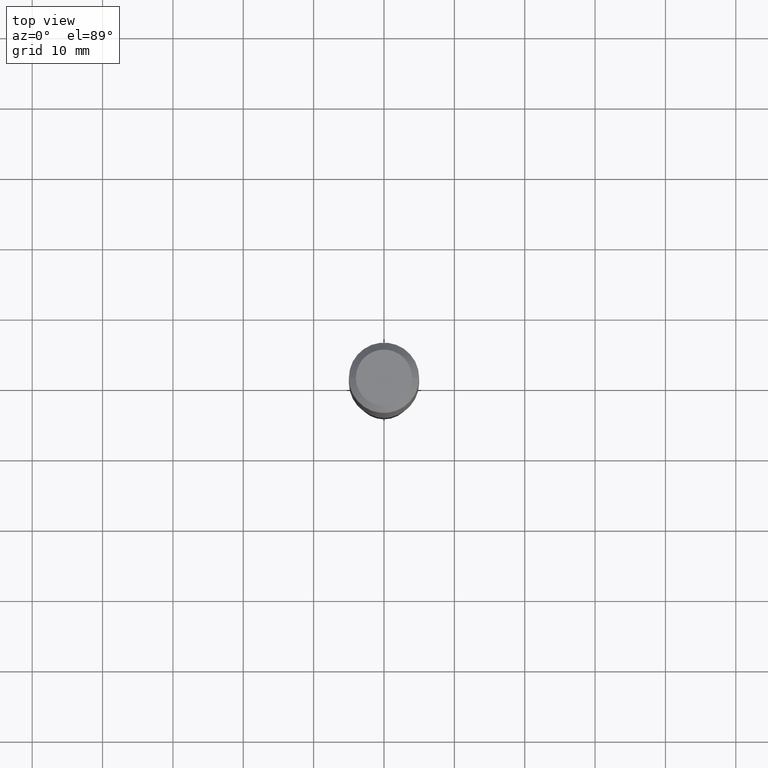
[diagram: clean part render]
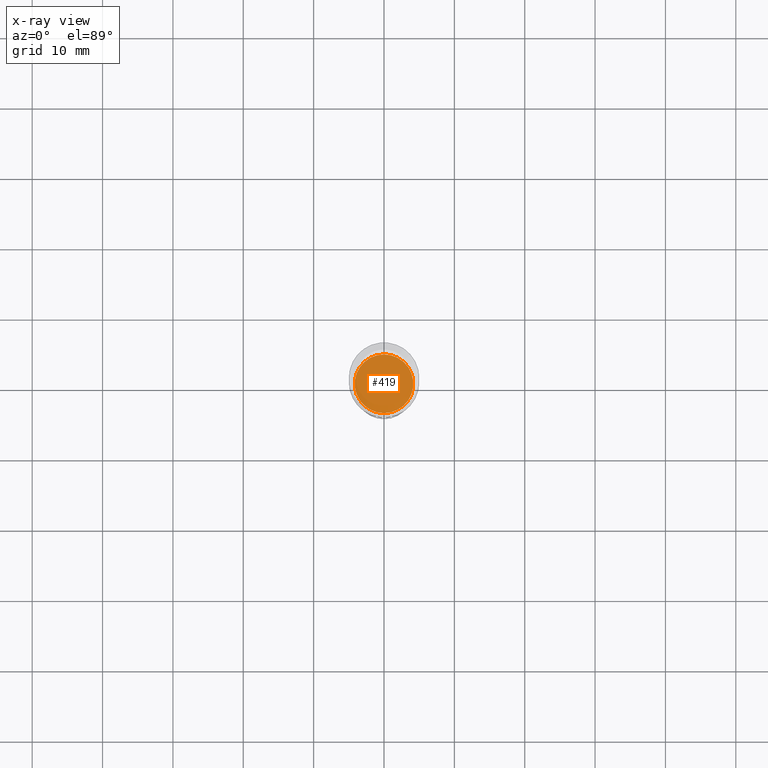
[diagram: x-ray — body ghosted, one internal face saturated and labeled with its STEP entity id]
A machine part, top view, then the same camera in x-ray: the body is ghosted and one INTERNAL B-rep face — a face not visible from any outside direction — is saturated and labeled: STEP entity #419.
In plain terms, the highlighted planar face has unit normal (0, -0, -1).
Its self-contained STEP definition (entity closure, byte-faithful):
#38 = AXIS2_PLACEMENT_3D ( 'NONE', #257, #184, #267 ) ;
#68 = EDGE_CURVE ( 'NONE', #244, #241, #144, .T. ) ;
#87 = ORIENTED_EDGE ( 'NONE', *, *, #68, .T. ) ;
#116 = AXIS2_PLACEMENT_3D ( 'NONE', #117, #242, #277 ) ;
#117 = CARTESIAN_POINT ( 'NONE',  ( 4.844718251933373369E-29, -6.916973680382155175E-15, -1.981099999999999861 ) ) ;
#142 = AXIS2_PLACEMENT_3D ( 'NONE', #227, #226, #379 ) ;
#144 = CIRCLE ( 'NONE', #116, 0.1640500000000000014 ) ;
#151 = FACE_OUTER_BOUND ( 'NONE', #256, .T. ) ;
#184 = DIRECTION ( 'NONE',  ( -2.445536461183793297E-29, 3.491384453034385749E-15, 1.000000000000000000 ) ) ;
#191 = PLANE ( 'NONE',  #142 ) ;
#226 = DIRECTION ( 'NONE',  ( 2.445536461183793017E-29, -3.491384453034385749E-15, -1.000000000000000000 ) ) ;
#227 = CARTESIAN_POINT ( 'NONE',  ( 4.844718251933373369E-29, -6.916973680382155175E-15, -1.981099999999999861 ) ) ;
#241 = VERTEX_POINT ( 'NONE', #397 ) ;
#242 = DIRECTION ( 'NONE',  ( -2.445536461183793297E-29, 3.491384453034385749E-15, 1.000000000000000000 ) ) ;
#244 = VERTEX_POINT ( 'NONE', #445 ) ;
#256 = EDGE_LOOP ( 'NONE', ( #87, #283 ) ) ;
#257 = CARTESIAN_POINT ( 'NONE',  ( 4.844718251933373369E-29, -6.916973680382155175E-15, -1.981099999999999861 ) ) ;
#264 = CIRCLE ( 'NONE', #38, 0.1640500000000000014 ) ;
#267 = DIRECTION ( 'NONE',  ( -6.982962677686265133E-15, -1.000000000000000000, 3.330506545156066257E-15 ) ) ;
#277 = DIRECTION ( 'NONE',  ( -6.982962677686265133E-15, -1.000000000000000000, 3.330506545156066257E-15 ) ) ;
#283 = ORIENTED_EDGE ( 'NONE', *, *, #302, .T. ) ;
#302 = EDGE_CURVE ( 'NONE', #241, #244, #264, .T. ) ;
#379 = DIRECTION ( 'NONE',  ( 6.982962677686265922E-15, 1.000000000000000000, -3.491384453034385749E-15 ) ) ;
#397 = CARTESIAN_POINT ( 'NONE',  ( 1.165645358014541395E-15, 0.1640499999999930625, -1.981100000000000305 ) ) ;
#419 = ADVANCED_FACE ( 'NONE', ( #151 ), #191, .F. ) ;
#445 = CARTESIAN_POINT ( 'NONE',  ( -1.145555027274383345E-15, -0.1640500000000069125, -1.981099999999999195 ) ) ;